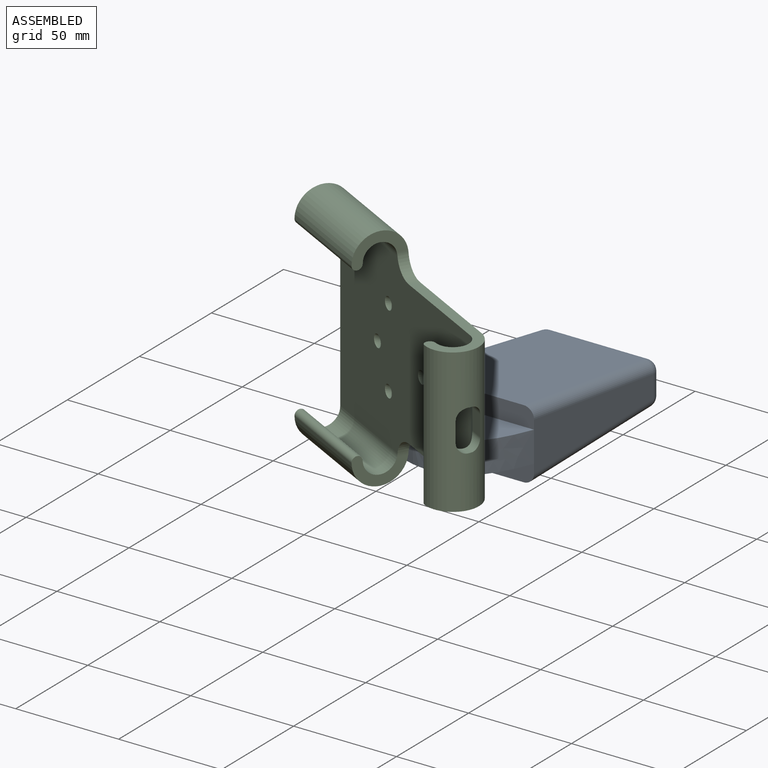
[diagram: assembled view]
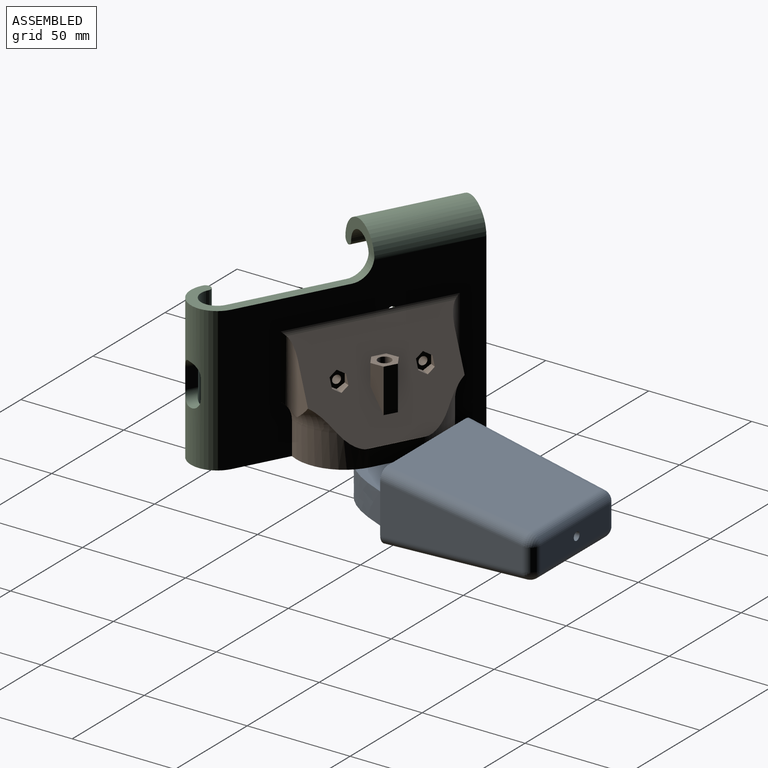
[diagram: assembled view, second angle]
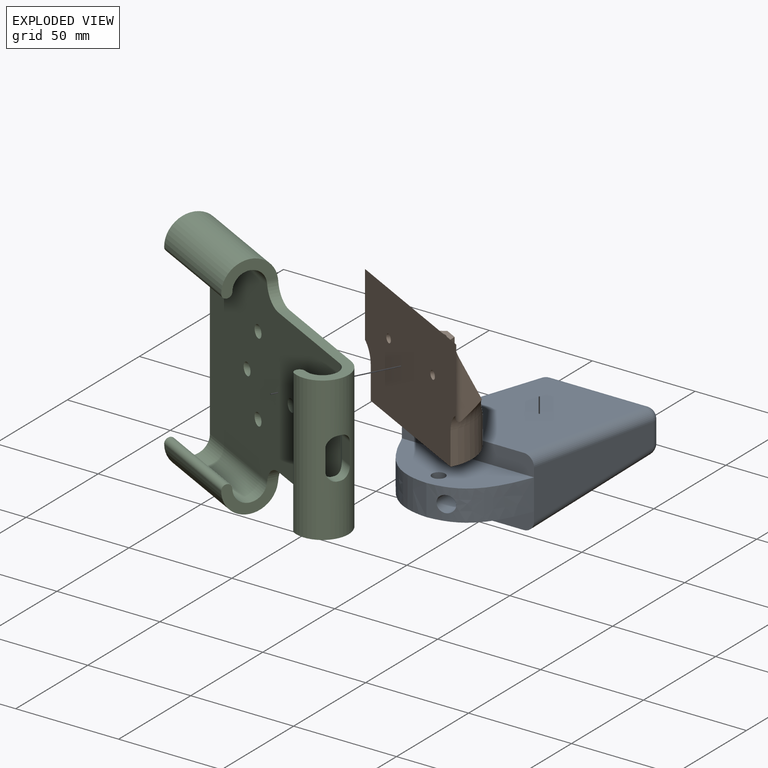
[diagram: exploded view]
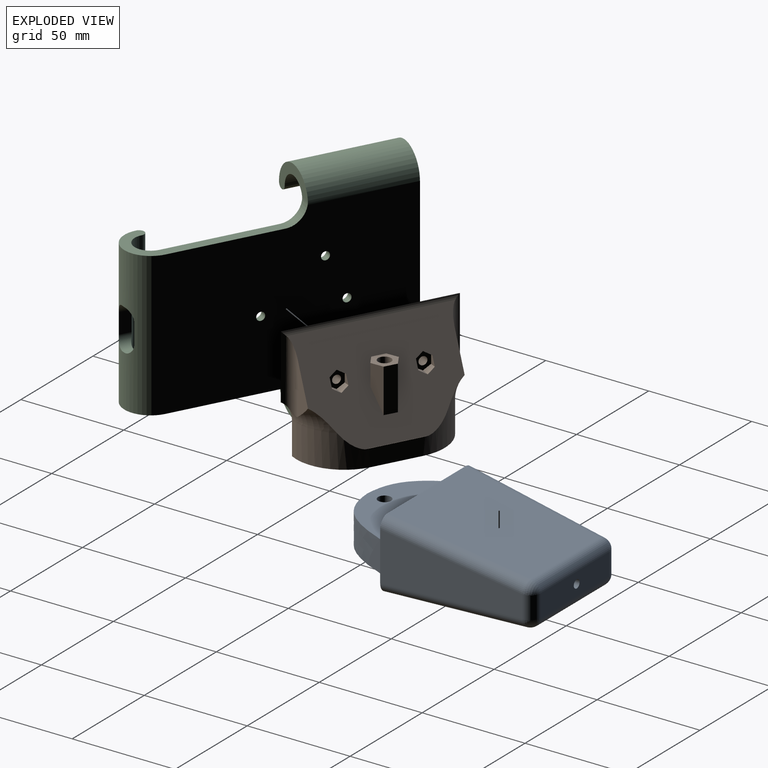
[diagram: exploded view, second angle]
ASSEMBLY  parts=3 mates=2
PART A: 28 faces, bbox 70.7x107.9x34 mm
  f0: plane 64.25x9.48mm, normal (0,-1,0), area 595.7mm2, adj f4,f5,f6,f7,f8,f21
  f1: plane 64.25x9.48mm, normal (0,-1,0), area 595.7mm2, adj f3,f4,f6,f9,f10,f22
  f2: plane 47.54x10.9mm, normal (0,1,0), area 505.8mm2, adj f12,f13,f16,f17,f26
  f3: plane 74.44x60.66mm, normal (0,0.09,-1), area 3799.2mm2, adj f1,f9,f10,f13
  f4: plane 74.87x24mm, normal (-0.98,0.17,0), area 1326.9mm2, adj f0,f1,f8,f9,f12,f19
  f5: plane 74.44x60.66mm, normal (0,0.09,1), area 3799.2mm2, adj f0,f7,f8,f16
  f6: plane 73.56x23.78mm, normal (1,-0.09,0), area 1280.4mm2, adj f0,f1,f7,f10,f17,f20
  f7: cylinder r=5mm len=75.31mm, axis (0.09,0.99,-0.09), area 588.5mm2, adj f0,f5,f6,f18
  f8: cylinder r=5mm len=75.5mm, axis (-0.17,-0.98,0.09), area 593.2mm2, adj f0,f4,f5,f14
  f9: cylinder r=5mm len=75.5mm, axis (0.17,0.98,0.09), area 593.2mm2, adj f1,f3,f4,f11
  f10: cylinder r=5mm len=75.31mm, axis (-0.09,-0.99,-0.09), area 588.5mm2, adj f1,f3,f6,f15
  f11: sphere r=5mm, area 32.8mm2, adj f9,f12,f13
  f12: cylinder r=5mm len=10.9mm, axis (0,0,-1), area 76.1mm2, adj f2,f4,f11,f14
  f13: cylinder r=5mm len=47.54mm, axis (1,0,0), area 352.6mm2, adj f2,f3,f11,f15
  f14: sphere r=5mm, area 32.8mm2, adj f8,f12,f16
  f15: sphere r=5mm, area 39.3mm2, adj f10,f13,f17
  f16: cylinder r=5mm len=47.54mm, axis (1,0,0), area 352.6mm2, adj f2,f5,f14,f18
  f17: cylinder r=5mm len=10.9mm, axis (0,0,-1), area 90.4mm2, adj f2,f6,f15,f18
  f18: sphere r=5mm, area 39.3mm2, adj f7,f16,f17
  f19: extruded ~32.11x28.88mm, area 695.1mm2, adj f4,f20,f21,f22
  f20: extruded ~32.11x28.88mm, area 642.7mm2, adj f6,f19,f21,f22,f24
  f21: plane 64.21x28.88mm, normal (0,0,1), area 1312.1mm2, adj f0,f19,f20,f23
  f22: plane 64.21x28.88mm, normal (0,0,-1), area 1312.1mm2, adj f1,f19,f20,f23
  f23: cylinder r=3.17mm len=15mm, axis (0,0,-1), area 299.2mm2, adj f21,f22
  f24: cylinder r=4mm len=92.41mm, axis (0,-1,0), area 2296.9mm2, adj f20,f25
  f25: plane 8x8mm, normal (0,-1,0), area 6.5mm2, adj f24,f27
  f26: cylinder r=2mm len=12mm, axis (0,-1,0), area 150.8mm2, adj f2,f27
  f27: cone r=2mm half-angle=30deg, axis (0,-1,0), area 62.4mm2, adj f25,f26
PART B: 41 faces, bbox 55.8x39.8x80 mm
  f0: plane 75.51x45.26mm, normal (-0.45,0.89,0), area 2846.5mm2, adj f5,f6,f7,f10,f11,f12,f13,f14
  f1: plane 16.06x0.14mm, normal (0,0,-1), area 2.3mm2, adj f3,f8,f13,f17
  f2: plane 16.06x0.14mm, normal (0,0,1), area 2.3mm2, adj f4,f8,f15,f17
  f3: cylinder r=10mm len=8.66mm, axis (0,-1,0), area 1.4mm2, adj f1,f10,f14,f17
  f4: cylinder r=10mm len=8.66mm, axis (0,1,0), area 1.4mm2, adj f2,f11,f16,f17
  f5: plane 25.38x9.05mm, normal (0,0,1), area 116.8mm2, adj f0,f11,f16
  f6: plane 25.38x9.05mm, normal (0,0,-1), area 116.8mm2, adj f0,f10,f14
  f7: plane 28.73x0.15mm, normal (-1,0,0), area 4.1mm2, adj f0,f9,f13,f15
  f8: plane 70x23.44mm, normal (1,0,0), area 1376.4mm2, adj f1,f2,f9,f13,f15,f17,f40
  f9: plane 23.4x8.3mm, normal (0,1,0), area 194.2mm2, adj f7,f8,f13,f15
  f10: cylinder r=5mm len=36.82mm, axis (-1,0,0), area 233mm2, adj f0,f3,f6,f12,f14,f17
  f11: cylinder r=5mm len=36.82mm, axis (1,0,0), area 233mm2, adj f0,f4,f5,f12,f16,f17
  f12: cylinder r=5mm len=80mm, axis (0,0,-1), area 181.1mm2, adj f0,f10,f11,f17
  f13: cylinder r=23.3mm len=23.3mm, axis (-1,0,0), area 513.8mm2, adj f0,f1,f7,f8,f9,f14
  f14: torus R=33.3mm, axis (0,1,0), area 136.1mm2, adj f0,f3,f6,f10,f13
  f15: cylinder r=23.3mm len=23.3mm, axis (1,0,0), area 513.8mm2, adj f0,f2,f7,f8,f9,f16
  f16: torus R=33.3mm, axis (0,1,0), area 136.1mm2, adj f0,f4,f5,f11,f15
  f17: plane 80x55.8mm, normal (0,-1,0), area 4216.9mm2, adj f1,f2,f3,f4,f8,f10,f11,f12
  f18: cylinder r=2mm len=8.3mm, axis (0,-1,0), area 104.3mm2, adj f17,f33
  f19: cylinder r=2mm len=8.3mm, axis (0,-1,0), area 104.3mm2, adj f17,f26
  f20: plane 3.66x2.11mm, normal (0.87,0,0.5), area 2.3mm2, adj f0,f21,f25,f26
  f21: plane 4.23x3.19mm, normal (0,0,1), area 9mm2, adj f0,f20,f22,f26
  f22: plane 4.25x3.66mm, normal (-0.87,0,0.5), area 15.7mm2, adj f0,f21,f23,f26
  f23: plane 4.25x3.66mm, normal (-0.87,0,-0.5), area 15.7mm2, adj f0,f22,f24,f26
  f24: plane 4.23x3.19mm, normal (0,0,-1), area 9mm2, adj f0,f23,f25,f26
  f25: plane 3.66x2.11mm, normal (0.87,0,-0.5), area 2.3mm2, adj f0,f20,f24,f26
  f26: plane 8.46x7.32mm, normal (0,1,0), area 33.9mm2, adj f19,f20,f21,f22,f23,f24,f25
  f27: plane 3.66x2.11mm, normal (0.87,0,0.5), area 2.3mm2, adj f0,f28,f32,f33
  f28: plane 4.23x3.19mm, normal (0,0,1), area 9mm2, adj f0,f27,f29,f33
  f29: plane 4.25x3.66mm, normal (-0.87,0,0.5), area 15.7mm2, adj f0,f28,f30,f33
  f30: plane 4.25x3.66mm, normal (-0.87,0,-0.5), area 15.7mm2, adj f0,f29,f31,f33
  f31: plane 4.23x3.19mm, normal (0,0,-1), area 9mm2, adj f0,f30,f32,f33
  f32: plane 3.66x2.11mm, normal (0.87,0,-0.5), area 2.3mm2, adj f0,f27,f31,f33
  f33: plane 8.46x7.32mm, normal (0,1,0), area 33.9mm2, adj f18,f27,f28,f29,f30,f31,f32
  f34: plane 10.42x5.24mm, normal (0,-0.5,-0.87), area 31.5mm2, adj f0,f35,f39
  f35: plane 21.33x5.49mm, normal (0,0.5,-0.86), area 100.8mm2, adj f0,f34,f36,f39
  f36: plane 21.33x6.35mm, normal (0,1,0), area 135.3mm2, adj f0,f35,f37,f39
  f37: plane 21.28x5.51mm, normal (0,0.5,0.87), area 100.3mm2, adj f0,f36,f38,f39
  f38: plane 10.31x5.18mm, normal (0,-0.5,0.86), area 30.9mm2, adj f0,f37,f39
  f39: plane 12.7x10.73mm, normal (-1,0,0), area 71.3mm2, adj f0,f34,f35,f36,f37,f38,f40
  f40: cylinder r=3.17mm len=40.06mm, axis (1,0,0), area 799.2mm2, adj f8,f39
PART C: 34 faces, bbox 126.5x25.5x112 mm
  f0: plane 25.33x15.23mm, normal (1,0,0), area 161.6mm2, adj f2,f3,f4,f16
  f1: plane 113.8x86.5mm, normal (0,-1,0), area 8720.6mm2, adj f2,f8,f10,f11,f14,f15,f16,f17
  f2: cylinder r=7.73mm len=50.15mm, axis (-1,0,0), area 1213.6mm2, adj f0,f1,f3,f10,f16
  f3: cylinder r=2.5mm len=50mm, axis (-1,0,0), area 392.7mm2, adj f0,f2,f4,f10
  f4: cylinder r=12.72mm len=50.15mm, axis (-1,0,0), area 1999mm2, adj f0,f3,f5,f10,f16
  f5: plane 113.8x86.5mm, normal (0,1,0), area 8783.5mm2, adj f4,f6,f10,f13,f14,f15,f16,f17
  f6: cylinder r=12.72mm len=50.15mm, axis (-1,0,0), area 1999mm2, adj f5,f7,f9,f10,f17
  f7: cylinder r=2.5mm len=50mm, axis (-1,0,0), area 392.7mm2, adj f6,f8,f9,f10
  f8: cylinder r=7.73mm len=50.15mm, axis (-1,0,0), area 1213.6mm2, adj f1,f7,f9,f10,f17
  f9: plane 25.33x15.23mm, normal (1,0,0), area 161.6mm2, adj f6,f7,f8,f17
  f10: plane 111.95x25.45mm, normal (-1,0,0), area 773.4mm2, adj f1,f2,f3,f4,f5,f6,f7,f8
  f11: cylinder r=7.73mm len=70mm, axis (0,0,-1), area 1461.3mm2, adj f1,f12,f14,f15,f18,f19,f20,f21
  f12: cylinder r=2.5mm len=70mm, axis (0,0,-1), area 549.8mm2, adj f11,f13,f14,f15
  f13: cylinder r=12.72mm len=70mm, axis (0,0,-1), area 2582mm2, adj f5,f12,f14,f15,f18,f19,f20,f21
  f14: plane 66.53x25.45mm, normal (0,0,1), area 439.4mm2, adj f1,f5,f11,f12,f13,f17
  f15: plane 66.53x25.45mm, normal (0,0,-1), area 439.4mm2, adj f1,f5,f11,f12,f13,f16
  f16: cylinder r=10mm len=10mm, axis (0,-1,0), area 78.6mm2, adj f0,f1,f2,f4,f5,f15
  f17: cylinder r=10mm len=10mm, axis (0,1,0), area 78.6mm2, adj f1,f5,f6,f8,f9,f14
  f18: plane 10x5.71mm, normal (0,1,0), area 57.1mm2, adj f11,f13,f22,f25
  f19: plane 5.2x1.5mm, normal (0,0,1), area 7.5mm2, adj f11,f13,f22,f23
  f20: plane 10x7.04mm, normal (0,-1,0), area 70.4mm2, adj f11,f13,f23,f24
  f21: plane 5.2x1.5mm, normal (0,0,-1), area 7.5mm2, adj f11,f13,f24,f25
  f22: cylinder r=5mm len=6.63mm, axis (-1,0,0), area 41.8mm2, adj f11,f13,f18,f19
  f23: cylinder r=5mm len=8.86mm, axis (1,0,0), area 47.2mm2, adj f11,f13,f19,f20
  f24: cylinder r=5mm len=8.86mm, axis (-1,0,0), area 47.2mm2, adj f11,f13,f20,f21
  f25: cylinder r=5mm len=6.63mm, axis (1,0,0), area 41.8mm2, adj f11,f13,f18,f21
  f26: cylinder r=2mm len=4mm, axis (0,-1,0), area 41.1mm2, adj f5,f27
  f27: cone r=2mm half-angle=30deg, axis (0,-1,0), area 31.4mm2, adj f1,f26
  f28: cylinder r=2mm len=4mm, axis (0,-1,0), area 41.1mm2, adj f5,f29
  f29: cone r=2mm half-angle=30deg, axis (0,-1,0), area 31.4mm2, adj f1,f28
  f30: cylinder r=2mm len=4mm, axis (0,-1,0), area 41.1mm2, adj f5,f31
  f31: cone r=2mm half-angle=30deg, axis (0,-1,0), area 31.4mm2, adj f1,f30
  f32: cylinder r=2mm len=4mm, axis (0,-1,0), area 41.1mm2, adj f5,f33
  f33: cone r=2mm half-angle=30deg, axis (0,-1,0), area 31.4mm2, adj f1,f32
PLACE A t=(4.85,-14.5,10.74)mm
PLACE B rot(axis=(0.24,0.94,-0.24),93.4deg) t=(-3.37,-50.32,69.3)mm
PLACE C rot(axis=(0,0,-1),28deg) t=(-27.09,-37.71,53.3)mm
MATE revolute B.f40 <-> A.f23  axis (0,0,-1) through (4.85,-34.84,18.24)mm
MATE planar B.f17 <-> C.f5  axis (-0.47,-0.88,0) through (-1.03,-45.9,46.98)mm
